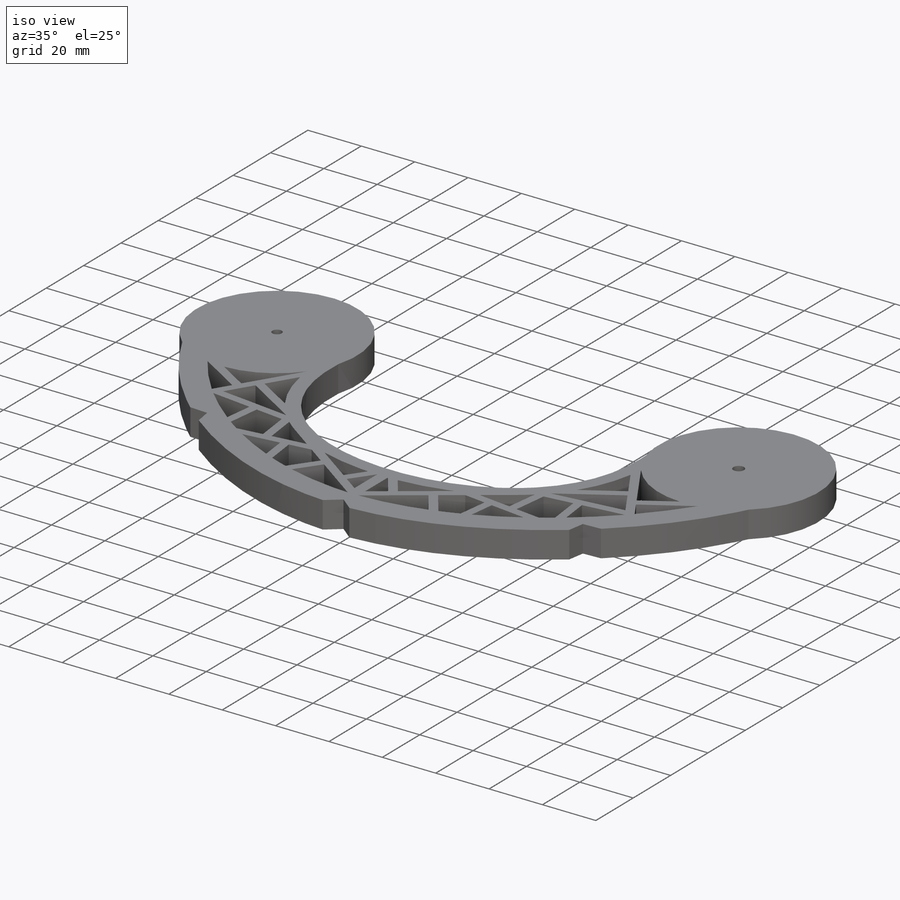
[diagram: iso view]
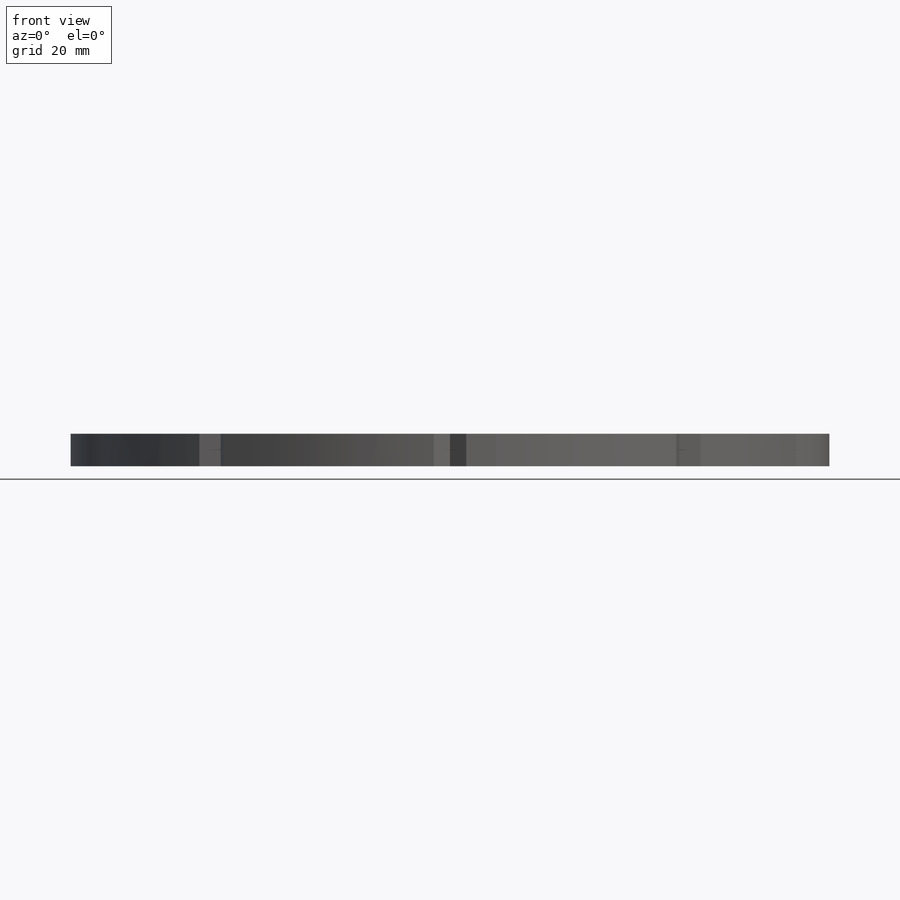
[diagram: front view]
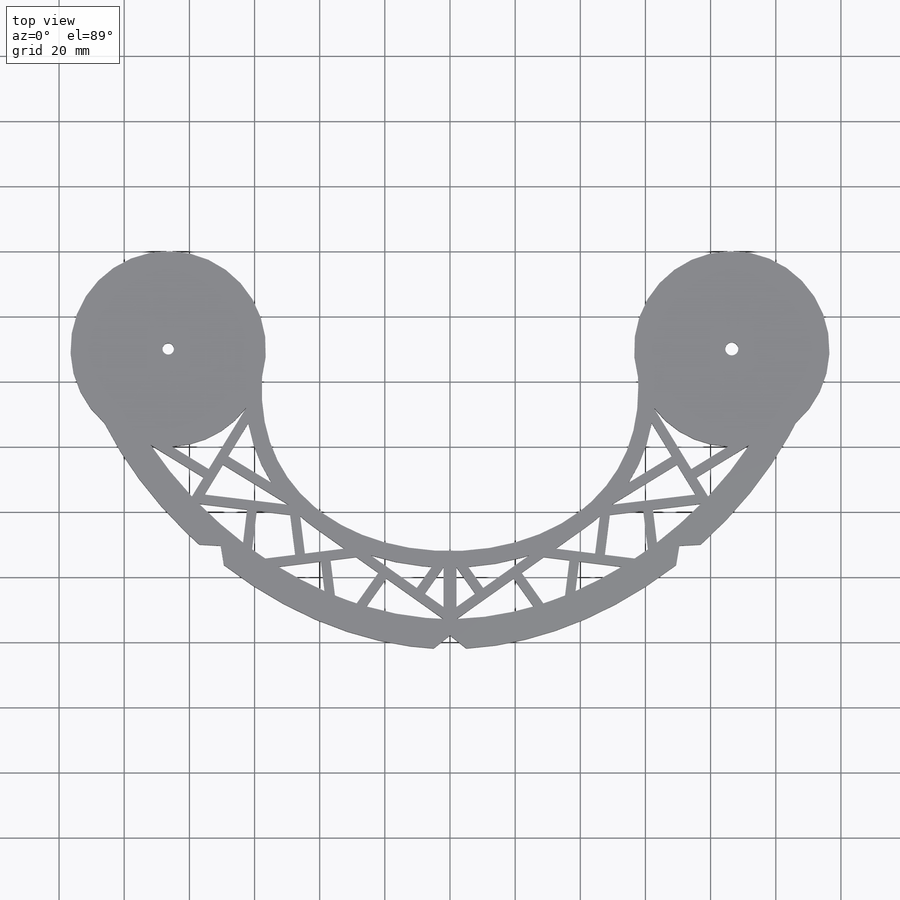
[diagram: top view]
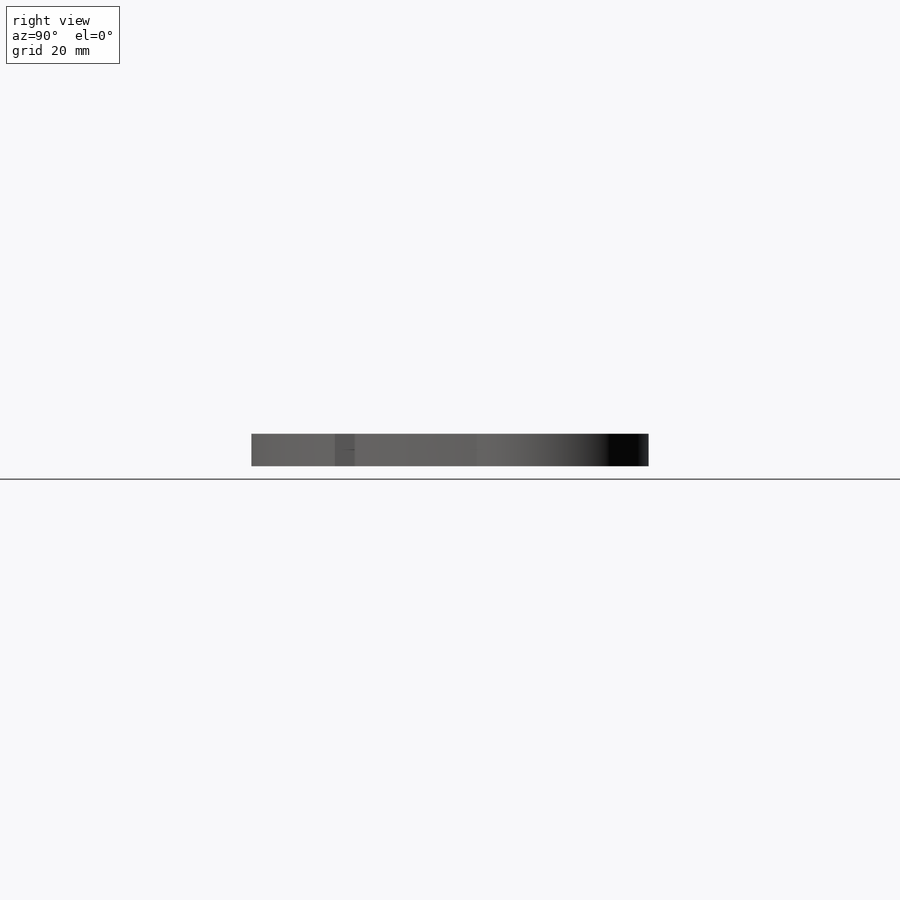
[diagram: right view]
SOLIDWORKS PART (.sldprt)
format: sldprt  version: not decoded by parser v0  size: 643,584 bytes
history: native  units: mm
features: sketch x8, cut_extrude x4, extrude x3, material x1 (+13 scaffold rows collapsed)
feature tree (29):
  scaffold x13  (default folders/planes/origin — collapsed)
  material  "Material <not specified>"
  sketch  "Foot Measurements"  dims[D1=33.0mm D2=75.0mm D3=73.0mm D4=147.0mm D5=250.0mm]
  sketch  "Sketch7"  dims[c1.D1=60.0mm c1.D2=~87.076116mm c1.D3=60.0mm c1.D4=~87.076116mm c1.D5=~196.280456mm c1.D6=~293.924284mm c2.D1=30.0mm c2.D6=~265.619299mm c3.D1=30.0mm c3.D4=~265.619299mm c3.D5=~179.192023mm c3.D6=~179.192022mm c4.D1=173.0mm c4.D3=15.0mm c4.D4=86.5mm c4.D5=121.5deg c5.D5=15.0mm c6.D5=157.5deg c6.D2=~28.76565mm c6.D1=173.0mm c7.D2=~77.972541mm c7.D5=~38.762518mm c7.D6=~28.76565mm c7.D7=~28.122979mm c8.D6=~20.282809mm c8.D2=86.5mm c9.D6=~30.000001mm c9.D7=~30.000007mm c9.D8=~30.000007mm c9.D3=86.5mm c9.D9=~102.076116mm c9.D10=~72.076115mm c9.D11=~87.076116mm c9.D12=10.0mm c9.D4=~72.076111mm c9.D5=~102.076117mm c10.D6=~60.542283mm c10.D7=~50.488405mm c10.D8=10.0mm c10.D10=~47.518155mm c10.D11=~75.724378mm c10.D13=~72.076115mm c10.D14=~55.415174mm c10.D15=~39.128745mm c10.D16=~39.128745mm c10.D17=~55.415174mm c10.D18=~47.518155mm c10.D19=~75.724378mm c10.D20=~28.765651mm c10.D21=~28.765651mm c10.D22=~57.689732mm c10.D23=~15.000006mm c10.D24=~15.000001mm]
  extrude  "Boss-Extrude7"  Depth=10mm
  sketch  "Sketch9"  dims[c1.D1=3.5mm c1.D2=3.5mm c1.D3=3.5mm c1.D4=3.5mm c2.D3=4.0mm c2.D4=4.0mm c2.D2=28.25mm c3.D3=28.25mm c3.D4=28.0mm]
  cut_extrude  "Cut-Extrude1"  [1 undecoded]
  sketch  "Sketch10"  dims[c1.D1=9.0mm c1.D2=9.0mm c1.D3=~3.897114mm c2.D1=8.0mm c2.D2=8.0mm]
  cut_extrude  "Cut-Extrude2"  Depth=3mm
  sketch  "Sketch12"  dims[c1.D1=~100.076116mm c1.D2=5.0mm c2.D1=~97.067423mm c2.D2=10.0mm c2.D3=4.0mm c3.D1=5.0mm c3.D4=10.0mm c3.D5=4.0mm c3.D6=~73.244952mm c4.D6=90.0deg c4.D7=~102.075768mm c5.D7=45.0deg c5.D8=10.0mm c5.D9=4.0mm c5.D1=0.0mm]
  cut_extrude  "Cut-Extrude3"  [1 undecoded]
  sketch  "Sketch13"  dims[c1.D1=3.0mm c1.D2=4.0mm c1.D3=2.0mm c2.D1=~161.749396deg c3.D1=5.0mm c3.D2=5.0mm]
  cut_extrude  "Cut-Extrude4"  [1 undecoded]
  sketch  "Sketch15"  dims[c1.D1=~1.157662mm c1.D2=2.0mm c1.D3=~15.860737mm c2.D2=1.2mm c2.D1=2.0mm c3.D2=3.0mm c3.D3=~27.451069mm c4.D3=~54.631636deg c4.D4=3.0mm c4.D5=~8.034415mm c5.D5=90.0deg c5.D6=3.0mm c5.D7=3.0mm c5.D8=~24.117311mm c6.D8=~137.494018deg c6.D9=3.0mm c6.D10=3.0mm c6.D11=3.0mm c6.D12=3.0mm c6.D13=3.0mm c6.D14=3.0mm c6.D15=~13.451693mm c7.D15=~65.41241deg c7.D16=~10.337301mm c8.D16=~104.029502deg c8.D17=3.0mm]
  extrude  "Boss-Extrude9"  [1 undecoded]
  sketch  "Sketch16"
  extrude  "Boss-Extrude10"  Depth=10mm
decode coverage: 10 of 15 modeling features carry decoded parameters
note: ~ marks probable driven/reference dimensions
note: 4 parameter values undecoded
summary: no parameter record found for 4 features
note: suppression state not decoded; provenance and decode notes live in map.json
